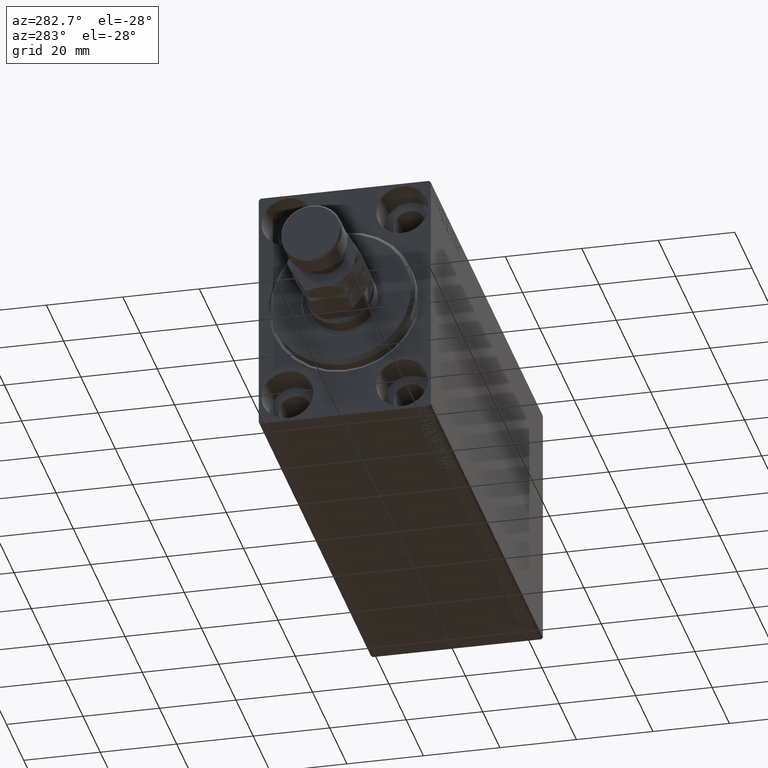
[diagram: clean part render]
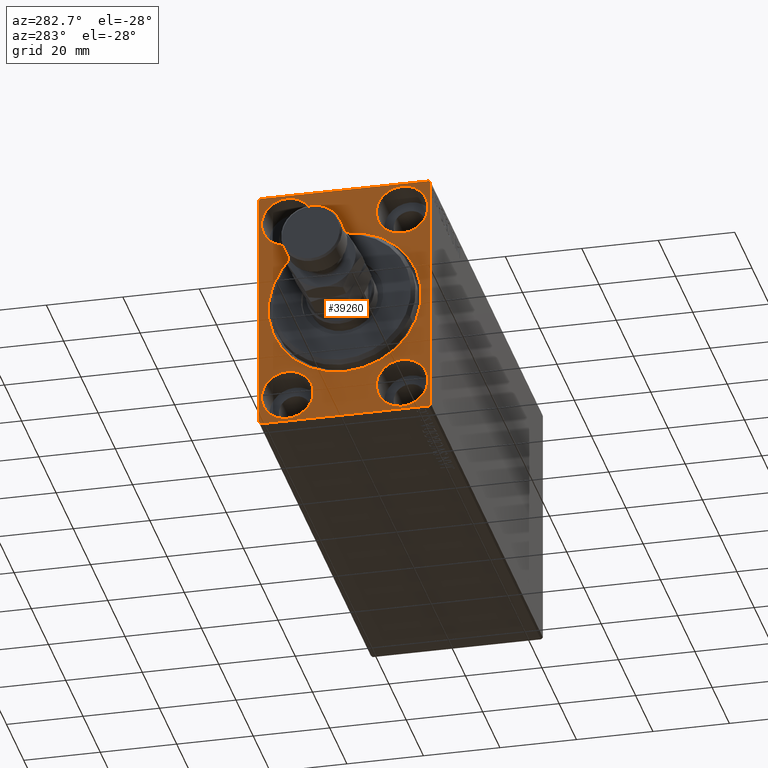
[diagram: same view with one face highlighted and labeled with its STEP entity id]
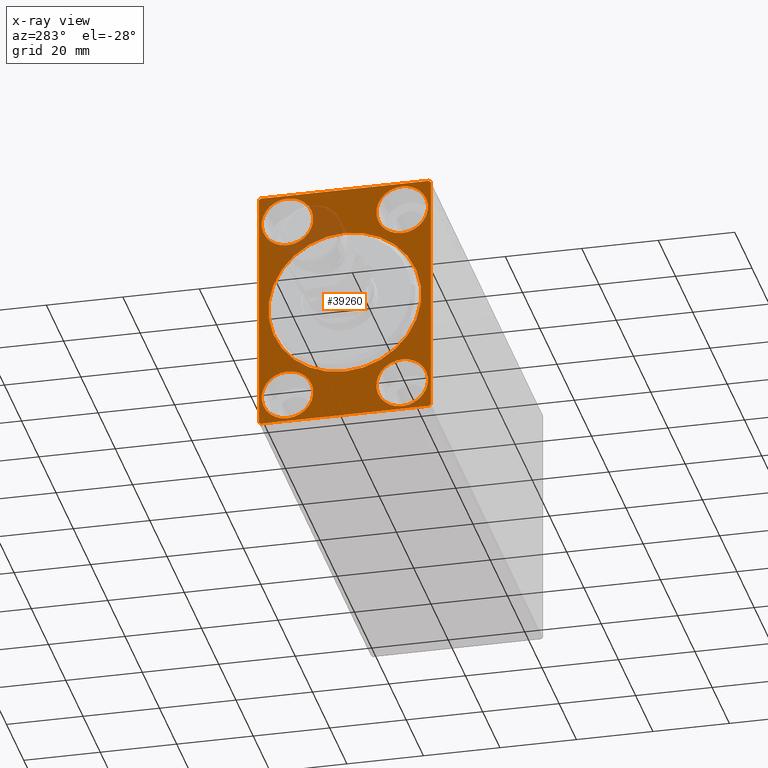
[diagram: x-ray of the same camera — body ghosted, the highlighted face saturated]
A machine part, auxiliary view. The second image highlights one B-rep face of the part: STEP entity #39260.
The next image is the same camera in x-ray: the body ghosted, the highlighted face saturated — about 8% of this face is hidden behind the body in this view.
In plain terms, the highlighted planar face has unit normal (1, 0, 0).
Its self-contained STEP definition (entity closure, byte-faithful):
#14 = EDGE_CURVE ( 'NONE', #30412, #23674, #21685, .T. ) ;
#549 = DIRECTION ( 'NONE',  ( 1.000000000000000000, 0.000000000000000000, 0.000000000000000000 ) ) ;
#760 = ORIENTED_EDGE ( 'NONE', *, *, #3864, .F. ) ;
#939 = CARTESIAN_POINT ( 'NONE',  ( 0.000000000000000000, 22.50000000000000000, -32.50000000000000711 ) ) ;
#1176 = VECTOR ( 'NONE', #12909, 1000.000000000000000 ) ;
#1480 = EDGE_CURVE ( 'NONE', #28959, #31651, #36513, .T. ) ;
#1685 = CARTESIAN_POINT ( 'NONE',  ( 0.000000000000000000, -22.50000000000000711, 32.49999999999999289 ) ) ;
#1776 = DIRECTION ( 'NONE',  ( -1.000000000000000000, 0.000000000000000000, 0.000000000000000000 ) ) ;
#1782 = EDGE_LOOP ( 'NONE', ( #35572, #21059 ) ) ;
#2232 = LINE ( 'NONE', #41080, #24282 ) ;
#3007 = LINE ( 'NONE', #17458, #22916 ) ;
#3166 = DIRECTION ( 'NONE',  ( -1.000000000000000000, 0.000000000000000000, 0.000000000000000000 ) ) ;
#3185 = CARTESIAN_POINT ( 'NONE',  ( 0.000000000000000000, -21.99999999999999289, 32.49999999999999289 ) ) ;
#3455 = DIRECTION ( 'NONE',  ( 0.000000000000000000, -0.7071067811865474617, -0.7071067811865474617 ) ) ;
#3653 = CARTESIAN_POINT ( 'NONE',  ( 0.000000000000000000, -15.00000000000000355, -25.00000000000000000 ) ) ;
#3864 = EDGE_CURVE ( 'NONE', #39662, #16358, #14710, .T. ) ;
#3878 = CIRCLE ( 'NONE', #38391, 6.749999999999999112 ) ;
#4166 = EDGE_LOOP ( 'NONE', ( #6216, #44475 ) ) ;
#4631 = EDGE_CURVE ( 'NONE', #15617, #42783, #17301, .T. ) ;
#4789 = CARTESIAN_POINT ( 'NONE',  ( 0.000000000000000000, 14.99999999999999645, -31.75000000000000000 ) ) ;
#4946 = VERTEX_POINT ( 'NONE', #31507 ) ;
#5337 = VECTOR ( 'NONE', #29947, 1000.000000000000000 ) ;
#5876 = ORIENTED_EDGE ( 'NONE', *, *, #19990, .F. ) ;
#5970 = AXIS2_PLACEMENT_3D ( 'NONE', #3653, #35153, #10097 ) ;
#6216 = ORIENTED_EDGE ( 'NONE', *, *, #12689, .F. ) ;
#6536 = ORIENTED_EDGE ( 'NONE', *, *, #26153, .F. ) ;
#6693 = AXIS2_PLACEMENT_3D ( 'NONE', #21463, #549, #31826 ) ;
#8094 = EDGE_CURVE ( 'NONE', #33348, #42783, #9225, .T. ) ;
#8476 = DIRECTION ( 'NONE',  ( 0.000000000000000000, 0.000000000000000000, -1.000000000000000000 ) ) ;
#8485 = CIRCLE ( 'NONE', #12165, 20.00000000000000355 ) ;
#9225 = LINE ( 'NONE', #23242, #14686 ) ;
#9241 = CIRCLE ( 'NONE', #45204, 20.00000000000000355 ) ;
#9792 = CARTESIAN_POINT ( 'NONE',  ( 0.000000000000000000, 14.99999999999999645, -18.25000000000000355 ) ) ;
#10097 = DIRECTION ( 'NONE',  ( 0.000000000000000000, 0.000000000000000000, 1.000000000000000000 ) ) ;
#10222 = ORIENTED_EDGE ( 'NONE', *, *, #19294, .F. ) ;
#10528 = DIRECTION ( 'NONE',  ( 0.000000000000000000, 0.000000000000000000, -1.000000000000000000 ) ) ;
#12165 = AXIS2_PLACEMENT_3D ( 'NONE', #12850, #17630, #10528 ) ;
#12602 = AXIS2_PLACEMENT_3D ( 'NONE', #19073, #22533, #40462 ) ;
#12650 = CARTESIAN_POINT ( 'NONE',  ( 0.000000000000000000, 0.000000000000000000, 20.00000000000000355 ) ) ;
#12689 = EDGE_CURVE ( 'NONE', #38821, #41558, #25057, .T. ) ;
#12850 = CARTESIAN_POINT ( 'NONE',  ( 0.000000000000000000, 0.000000000000000000, 0.000000000000000000 ) ) ;
#12909 = DIRECTION ( 'NONE',  ( -0.000000000000000000, 0.7071067811865622277, -0.7071067811865328068 ) ) ;
#13583 = DIRECTION ( 'NONE',  ( 0.000000000000000000, 0.000000000000000000, 1.000000000000000000 ) ) ;
#13831 = CARTESIAN_POINT ( 'NONE',  ( 0.000000000000000000, 22.50000000000000000, -32.00000000000002132 ) ) ;
#14686 = VECTOR ( 'NONE', #29236, 1000.000000000000114 ) ;
#14710 = LINE ( 'NONE', #939, #18225 ) ;
#14721 = ORIENTED_EDGE ( 'NONE', *, *, #8094, .T. ) ;
#15154 = VERTEX_POINT ( 'NONE', #39440 ) ;
#15361 = CARTESIAN_POINT ( 'NONE',  ( 0.000000000000000000, 0.000000000000000000, 0.000000000000000000 ) ) ;
#15478 = DIRECTION ( 'NONE',  ( -1.000000000000000000, 0.000000000000000000, 0.000000000000000000 ) ) ;
#15510 = CIRCLE ( 'NONE', #12602, 6.749999999999999112 ) ;
#15617 = VERTEX_POINT ( 'NONE', #37299 ) ;
#15776 = CARTESIAN_POINT ( 'NONE',  ( 0.000000000000000000, -22.50000000000000711, 31.99999999999999289 ) ) ;
#15895 = EDGE_CURVE ( 'NONE', #23254, #4946, #28738, .T. ) ;
#15911 = VECTOR ( 'NONE', #32951, 1000.000000000000000 ) ;
#15916 = LINE ( 'NONE', #1685, #5337 ) ;
#16193 = ORIENTED_EDGE ( 'NONE', *, *, #4631, .F. ) ;
#16358 = VERTEX_POINT ( 'NONE', #30175 ) ;
#16415 = ORIENTED_EDGE ( 'NONE', *, *, #18885, .T. ) ;
#16706 = AXIS2_PLACEMENT_3D ( 'NONE', #29516, #35748, #43526 ) ;
#17094 = EDGE_CURVE ( 'NONE', #41558, #38821, #19980, .T. ) ;
#17253 = EDGE_LOOP ( 'NONE', ( #20688, #6536 ) ) ;
#17271 = DIRECTION ( 'NONE',  ( 0.000000000000000000, 0.000000000000000000, 1.000000000000000000 ) ) ;
#17301 = LINE ( 'NONE', #34124, #41025 ) ;
#17458 = CARTESIAN_POINT ( 'NONE',  ( 0.000000000000000000, 22.50000000000000000, -32.00000000000002132 ) ) ;
#17544 = FACE_BOUND ( 'NONE', #1782, .T. ) ;
#17630 = DIRECTION ( 'NONE',  ( 1.000000000000000000, 0.000000000000000000, 0.000000000000000000 ) ) ;
#17677 = EDGE_LOOP ( 'NONE', ( #5876, #14721, #16193, #28634, #760, #16415, #35405, #45002 ) ) ;
#18225 = VECTOR ( 'NONE', #22060, 1000.000000000000000 ) ;
#18345 = CARTESIAN_POINT ( 'NONE',  ( 0.000000000000000000, -14.99999999999999645, 18.25000000000000355 ) ) ;
#18833 = EDGE_CURVE ( 'NONE', #31651, #28959, #36873, .T. ) ;
#18885 = EDGE_CURVE ( 'NONE', #39662, #23674, #3007, .T. ) ;
#19073 = CARTESIAN_POINT ( 'NONE',  ( 0.000000000000000000, -14.99999999999999645, 25.00000000000000000 ) ) ;
#19294 = EDGE_CURVE ( 'NONE', #40503, #35940, #3878, .T. ) ;
#19416 = CARTESIAN_POINT ( 'NONE',  ( 0.000000000000000000, 2.449293598294706907E-15, -20.00000000000000355 ) ) ;
#19936 = CARTESIAN_POINT ( 'NONE',  ( 0.000000000000000000, 22.00000000000000000, -32.50000000000000711 ) ) ;
#19980 = CIRCLE ( 'NONE', #32455, 6.749999999999999112 ) ;
#19990 = EDGE_CURVE ( 'NONE', #33348, #15154, #15916, .T. ) ;
#20088 = DIRECTION ( 'NONE',  ( 0.000000000000000000, -1.000000000000000000, -1.541976423090495387E-16 ) ) ;
#20349 = EDGE_LOOP ( 'NONE', ( #31888, #41336 ) ) ;
#20688 = ORIENTED_EDGE ( 'NONE', *, *, #15895, .F. ) ;
#20727 = CARTESIAN_POINT ( 'NONE',  ( 0.000000000000000000, 15.00000000000000355, 25.00000000000000000 ) ) ;
#20915 = DIRECTION ( 'NONE',  ( -1.000000000000000000, 0.000000000000000000, 0.000000000000000000 ) ) ;
#21059 = ORIENTED_EDGE ( 'NONE', *, *, #18833, .F. ) ;
#21293 = DIRECTION ( 'NONE',  ( 0.000000000000000000, 0.000000000000000000, 1.000000000000000000 ) ) ;
#21463 = CARTESIAN_POINT ( 'NONE',  ( 0.000000000000000000, 0.000000000000000000, 0.000000000000000000 ) ) ;
#21685 = LINE ( 'NONE', #28373, #15911 ) ;
#22060 = DIRECTION ( 'NONE',  ( 0.000000000000000000, -1.067522139062650425E-16, 1.000000000000000000 ) ) ;
#22533 = DIRECTION ( 'NONE',  ( -1.000000000000000000, 0.000000000000000000, 0.000000000000000000 ) ) ;
#22916 = VECTOR ( 'NONE', #3455, 1000.000000000000114 ) ;
#23242 = CARTESIAN_POINT ( 'NONE',  ( 0.000000000000000000, -22.50000000000000711, 31.99999999999999289 ) ) ;
#23254 = VERTEX_POINT ( 'NONE', #28980 ) ;
#23674 = VERTEX_POINT ( 'NONE', #19936 ) ;
#23902 = VERTEX_POINT ( 'NONE', #19416 ) ;
#24282 = VECTOR ( 'NONE', #38309, 1000.000000000000114 ) ;
#25057 = CIRCLE ( 'NONE', #36807, 6.749999999999999112 ) ;
#25871 = AXIS2_PLACEMENT_3D ( 'NONE', #35178, #20915, #13583 ) ;
#26153 = EDGE_CURVE ( 'NONE', #4946, #23254, #40015, .T. ) ;
#26687 = EDGE_CURVE ( 'NONE', #40339, #23902, #8485, .T. ) ;
#27495 = CARTESIAN_POINT ( 'NONE',  ( 0.000000000000000000, -22.00000000000003197, -32.50000000000000711 ) ) ;
#27569 = EDGE_CURVE ( 'NONE', #15617, #16358, #37277, .T. ) ;
#27900 = FACE_OUTER_BOUND ( 'NONE', #17677, .T. ) ;
#27966 = CARTESIAN_POINT ( 'NONE',  ( 0.000000000000000000, 15.00000000000000355, 25.00000000000000000 ) ) ;
#28373 = CARTESIAN_POINT ( 'NONE',  ( 0.000000000000000000, -22.50000000000000711, -32.50000000000000711 ) ) ;
#28459 = EDGE_CURVE ( 'NONE', #23902, #40339, #9241, .T. ) ;
#28634 = ORIENTED_EDGE ( 'NONE', *, *, #27569, .T. ) ;
#28738 = CIRCLE ( 'NONE', #5970, 6.749999999999999112 ) ;
#28841 = DIRECTION ( 'NONE',  ( 0.000000000000000000, 0.000000000000000000, 1.000000000000000000 ) ) ;
#28959 = VERTEX_POINT ( 'NONE', #9792 ) ;
#28980 = CARTESIAN_POINT ( 'NONE',  ( 0.000000000000000000, -15.00000000000000355, -18.25000000000000355 ) ) ;
#29236 = DIRECTION ( 'NONE',  ( -0.000000000000000000, 0.7071067811865474617, 0.7071067811865474617 ) ) ;
#29395 = DIRECTION ( 'NONE',  ( 1.000000000000000000, 0.000000000000000000, 0.000000000000000000 ) ) ;
#29516 = CARTESIAN_POINT ( 'NONE',  ( 0.000000000000000000, 14.99999999999999645, -25.00000000000000000 ) ) ;
#29947 = DIRECTION ( 'NONE',  ( 0.000000000000000000, 0.000000000000000000, -1.000000000000000000 ) ) ;
#30175 = CARTESIAN_POINT ( 'NONE',  ( 0.000000000000000000, 22.49999999999999289, 32.00000000000004974 ) ) ;
#30409 = DIRECTION ( 'NONE',  ( -1.000000000000000000, 0.000000000000000000, 0.000000000000000000 ) ) ;
#30412 = VERTEX_POINT ( 'NONE', #27495 ) ;
#31367 = FACE_BOUND ( 'NONE', #20349, .T. ) ;
#31507 = CARTESIAN_POINT ( 'NONE',  ( 0.000000000000000000, -15.00000000000000355, -31.75000000000000000 ) ) ;
#31651 = VERTEX_POINT ( 'NONE', #4789 ) ;
#31826 = DIRECTION ( 'NONE',  ( 0.000000000000000000, 0.000000000000000000, -1.000000000000000000 ) ) ;
#31888 = ORIENTED_EDGE ( 'NONE', *, *, #26687, .T. ) ;
#32455 = AXIS2_PLACEMENT_3D ( 'NONE', #27966, #3166, #21293 ) ;
#32951 = DIRECTION ( 'NONE',  ( 0.000000000000000000, 1.000000000000000000, 0.000000000000000000 ) ) ;
#33348 = VERTEX_POINT ( 'NONE', #15776 ) ;
#34124 = CARTESIAN_POINT ( 'NONE',  ( 0.000000000000000000, 22.49999999999999289, 32.50000000000000000 ) ) ;
#35153 = DIRECTION ( 'NONE',  ( -1.000000000000000000, 0.000000000000000000, 0.000000000000000000 ) ) ;
#35178 = CARTESIAN_POINT ( 'NONE',  ( 0.000000000000000000, 14.99999999999999645, -25.00000000000000000 ) ) ;
#35190 = EDGE_CURVE ( 'NONE', #30412, #15154, #2232, .T. ) ;
#35405 = ORIENTED_EDGE ( 'NONE', *, *, #14, .F. ) ;
#35527 = CARTESIAN_POINT ( 'NONE',  ( 0.000000000000000000, -15.00000000000000355, -25.00000000000000000 ) ) ;
#35572 = ORIENTED_EDGE ( 'NONE', *, *, #1480, .F. ) ;
#35748 = DIRECTION ( 'NONE',  ( -1.000000000000000000, 0.000000000000000000, 0.000000000000000000 ) ) ;
#35940 = VERTEX_POINT ( 'NONE', #40271 ) ;
#36513 = CIRCLE ( 'NONE', #16706, 6.749999999999999112 ) ;
#36704 = CARTESIAN_POINT ( 'NONE',  ( 0.000000000000000000, -14.99999999999999645, 25.00000000000000000 ) ) ;
#36807 = AXIS2_PLACEMENT_3D ( 'NONE', #20727, #30409, #17271 ) ;
#36873 = CIRCLE ( 'NONE', #25871, 6.749999999999999112 ) ;
#37277 = LINE ( 'NONE', #40721, #1176 ) ;
#37299 = CARTESIAN_POINT ( 'NONE',  ( 0.000000000000000000, 22.00000000000002132, 32.50000000000000000 ) ) ;
#38309 = DIRECTION ( 'NONE',  ( -0.000000000000000000, -0.7071067811865376918, 0.7071067811865573427 ) ) ;
#38391 = AXIS2_PLACEMENT_3D ( 'NONE', #36704, #1776, #43819 ) ;
#38821 = VERTEX_POINT ( 'NONE', #41855 ) ;
#39165 = FACE_BOUND ( 'NONE', #17253, .T. ) ;
#39260 = ADVANCED_FACE ( 'NONE', ( #31367, #17544, #42376, #42596, #39165, #27900 ), #42154, .F. ) ;
#39440 = CARTESIAN_POINT ( 'NONE',  ( 0.000000000000000000, -22.50000000000000711, -32.00000000000002132 ) ) ;
#39662 = VERTEX_POINT ( 'NONE', #13831 ) ;
#40015 = CIRCLE ( 'NONE', #42936, 6.749999999999999112 ) ;
#40271 = CARTESIAN_POINT ( 'NONE',  ( 0.000000000000000000, -14.99999999999999645, 31.75000000000000000 ) ) ;
#40282 = EDGE_CURVE ( 'NONE', #35940, #40503, #15510, .T. ) ;
#40339 = VERTEX_POINT ( 'NONE', #12650 ) ;
#40462 = DIRECTION ( 'NONE',  ( 0.000000000000000000, 0.000000000000000000, 1.000000000000000000 ) ) ;
#40503 = VERTEX_POINT ( 'NONE', #18345 ) ;
#40721 = CARTESIAN_POINT ( 'NONE',  ( 0.000000000000000000, 22.00000000000002132, 32.50000000000000000 ) ) ;
#40889 = EDGE_LOOP ( 'NONE', ( #42519, #10222 ) ) ;
#41025 = VECTOR ( 'NONE', #20088, 1000.000000000000000 ) ;
#41080 = CARTESIAN_POINT ( 'NONE',  ( 0.000000000000000000, -22.00000000000003197, -32.50000000000000711 ) ) ;
#41336 = ORIENTED_EDGE ( 'NONE', *, *, #28459, .T. ) ;
#41558 = VERTEX_POINT ( 'NONE', #42450 ) ;
#41855 = CARTESIAN_POINT ( 'NONE',  ( 0.000000000000000000, 15.00000000000000355, 31.75000000000000000 ) ) ;
#42154 = PLANE ( 'NONE',  #6693 ) ;
#42376 = FACE_BOUND ( 'NONE', #40889, .T. ) ;
#42450 = CARTESIAN_POINT ( 'NONE',  ( 0.000000000000000000, 15.00000000000000355, 18.25000000000000355 ) ) ;
#42519 = ORIENTED_EDGE ( 'NONE', *, *, #40282, .F. ) ;
#42596 = FACE_BOUND ( 'NONE', #4166, .T. ) ;
#42783 = VERTEX_POINT ( 'NONE', #3185 ) ;
#42936 = AXIS2_PLACEMENT_3D ( 'NONE', #35527, #15478, #28841 ) ;
#43526 = DIRECTION ( 'NONE',  ( 0.000000000000000000, 0.000000000000000000, 1.000000000000000000 ) ) ;
#43819 = DIRECTION ( 'NONE',  ( 0.000000000000000000, 0.000000000000000000, 1.000000000000000000 ) ) ;
#44475 = ORIENTED_EDGE ( 'NONE', *, *, #17094, .F. ) ;
#45002 = ORIENTED_EDGE ( 'NONE', *, *, #35190, .T. ) ;
#45204 = AXIS2_PLACEMENT_3D ( 'NONE', #15361, #29395, #8476 ) ;